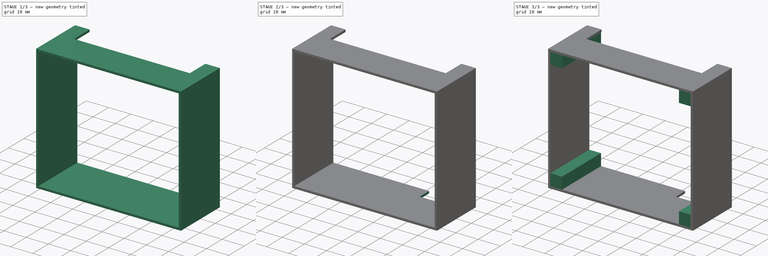
[diagram: build sequence overview — one tinted view per stage of 3, left to right]
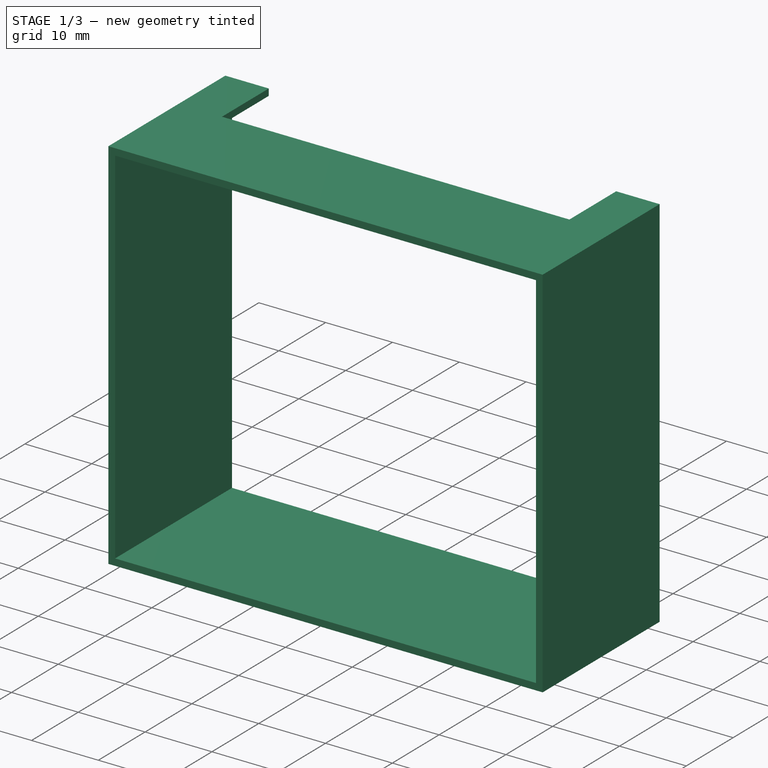
[diagram: stage 1 of 3 — iso view after this stage's code; geometry added in this stage tinted green]
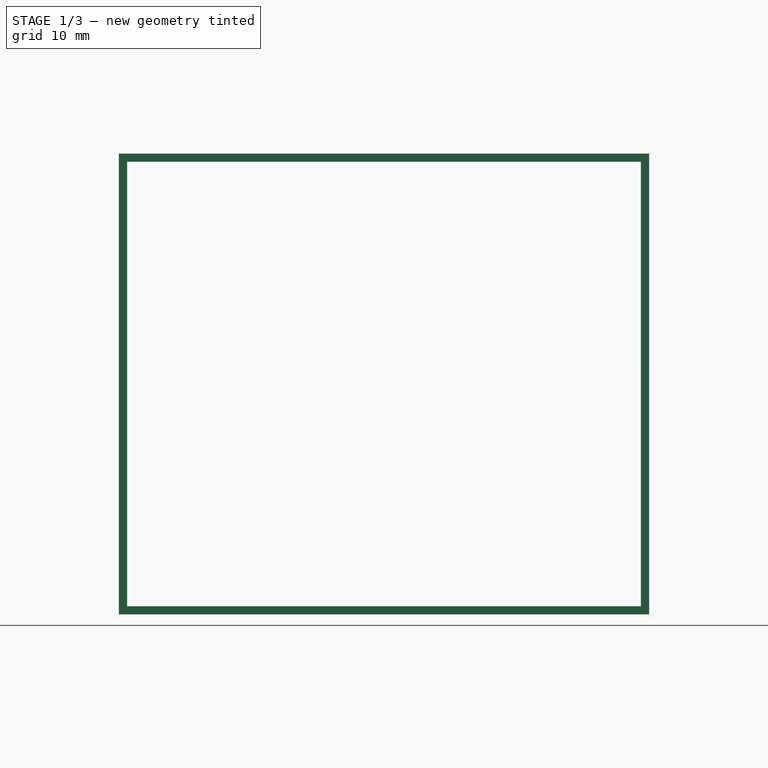
[diagram: stage 1 of 3 — front view after this stage's code; geometry added in this stage tinted green]
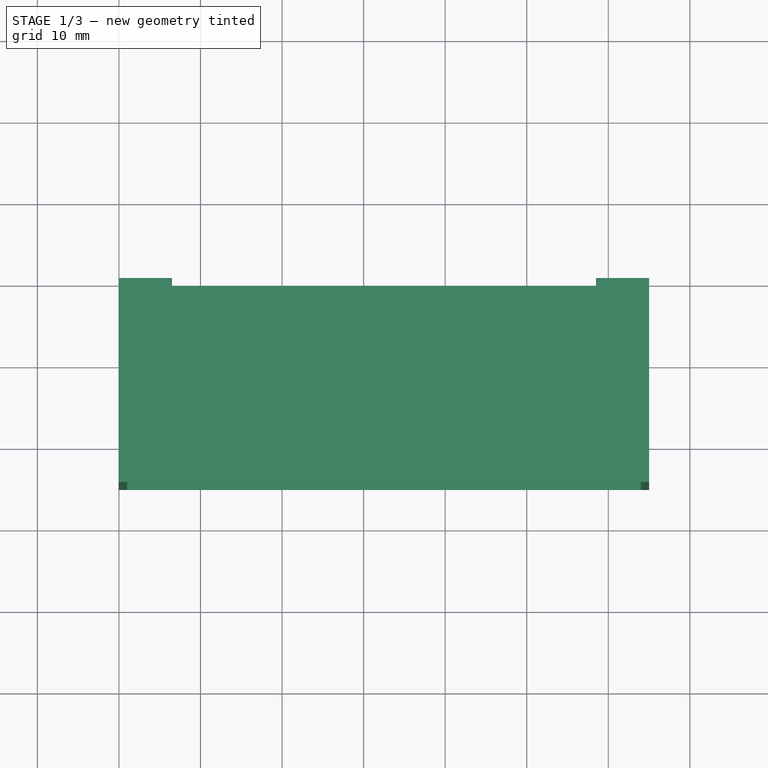
[diagram: stage 1 of 3 — top view after this stage's code; geometry added in this stage tinted green]
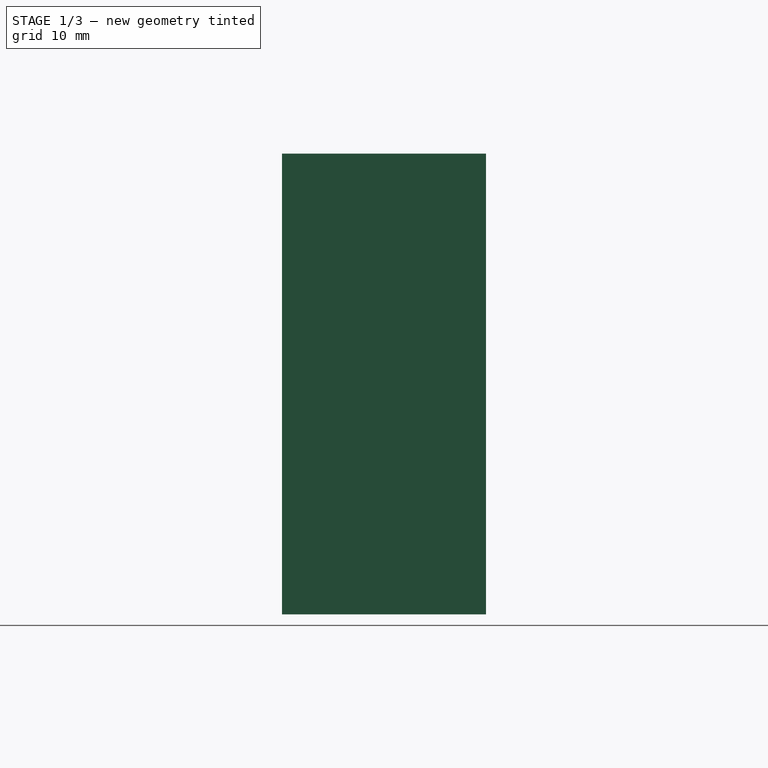
[diagram: stage 1 of 3 — right view after this stage's code; geometry added in this stage tinted green]
FCSTD DOCUMENT  (FreeCAD 0.18.4R)
Label: TouchlessTouchSwitch
License: All rights reserved
LicenseURL: http://en.wikipedia.org/wiki/All_rights_reserved
objects: Sketcher::SketchObject×5, PartDesign::Pocket×3, PartDesign::Pad×2, PartDesign::Body×1
note: 16 computed .brp shape members not serialized (recipe doc carries the construction recipe); baked Part::Feature solids carry a one-line shape summary decoded from their .brp

FEATURE [Sketcher::SketchObject] Sketch
  MapMode = 5
  Placement = pos=(0,0,0) rot=(1,0,0;1.5708rad)
  Support = -> [XZ_Plane]
  sketch-geometry (8):
    g0: LineSegment StartX=0 StartY=0 StartZ=0 EndX=65 EndY=0 EndZ=0
    g1: LineSegment StartX=65 StartY=0 StartZ=0 EndX=65 EndY=-56.5 EndZ=0
    g2: LineSegment StartX=65 StartY=-56.5 StartZ=0 EndX=0 EndY=-56.5 EndZ=0
    g3: LineSegment StartX=0 StartY=-56.5 StartZ=0 EndX=0 EndY=0 EndZ=0
    g4: LineSegment StartX=1 StartY=-1 StartZ=0 EndX=64 EndY=-1 EndZ=0
    g5: LineSegment StartX=64 StartY=-1 StartZ=0 EndX=64 EndY=-55.5 EndZ=0
    g6: LineSegment StartX=64 StartY=-55.5 StartZ=0 EndX=1 EndY=-55.5 EndZ=0
    g7: LineSegment StartX=1 StartY=-55.5 StartZ=0 EndX=1 EndY=-1 EndZ=0
  constraints (23):
    c: Coincident(g0,g1)
    c: Coincident(g1,g2)
    c: Coincident(g2,g3)
    c: Coincident(g3,g0)
    c: Horizontal(g0)
    c: Horizontal(g2)
    c: Vertical(g1)
    c: Vertical(g3)
    c: Coincident(g-1,g0)
    c: DistanceX(g0,g0) = 65
    c: DistanceY(g1,g1) = 56.5
    c: Coincident(g4,g5)
    c: Coincident(g5,g6)
    c: Coincident(g6,g7)
    c: Coincident(g7,g4)
    c: Horizontal(g4)
    c: Horizontal(g6)
    c: Vertical(g5)
    c: Vertical(g7)
    c: DistanceY(g4,g0) = 1
    c: DistanceY(g1,g5) = 1
    c: DistanceX(g2,g6) = 1
    c: DistanceX(g5,g1) = 1
FEATURE [PartDesign::Pad] Pad
  Length = 25
  Length2 = 100
  Placement = pos=(0,0,0) rot=(1,0,0;1.5708rad)
  Profile = -> Sketch
  Type = 0
FEATURE [Sketcher::SketchObject] Sketch001
  MapMode = 5
  Placement = pos=(0,0,0) rot=(1,0,0;1.5708rad)
  Support = -> [XZ_Plane]
  sketch-geometry (4):
    g0: LineSegment StartX=6.5 StartY=0 StartZ=0 EndX=58.5 EndY=0 EndZ=0
    g1: LineSegment StartX=58.5 StartY=0 StartZ=0 EndX=58.5 EndY=-1 EndZ=0
    g2: LineSegment StartX=58.5 StartY=-1 StartZ=0 EndX=6.5 EndY=-1 EndZ=0
    g3: LineSegment StartX=6.5 StartY=-1 StartZ=0 EndX=6.5 EndY=0 EndZ=0
  constraints (12):
    c: Coincident(g0,g1)
    c: Coincident(g1,g2)
    c: Coincident(g2,g3)
    c: Coincident(g3,g0)
    c: Horizontal(g0)
    c: Horizontal(g2)
    c: Vertical(g1)
    c: Vertical(g3)
    c: DistanceX(g-1,g0) = 6.5
    c: DistanceX(g0,g0) = 52
    c: DistanceY(g-1,g0) = 0
    c: DistanceY(g2,g0) = 1
FEATURE [PartDesign::Pocket] Pocket
  BaseFeature = -> Pad
  Length = 10
  Length2 = 100
  Placement = pos=(0,0,0) rot=(1,0,0;1.5708rad)
  Profile = -> Sketch001
  Reversed = true
  Type = 0
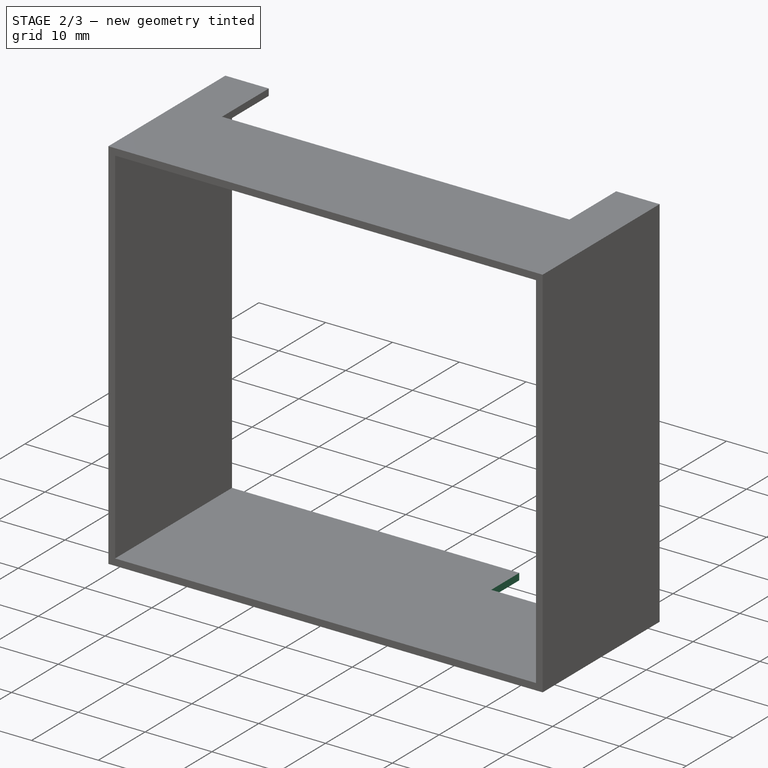
[diagram: stage 2 of 3 — iso view after this stage's code; geometry added in this stage tinted green]
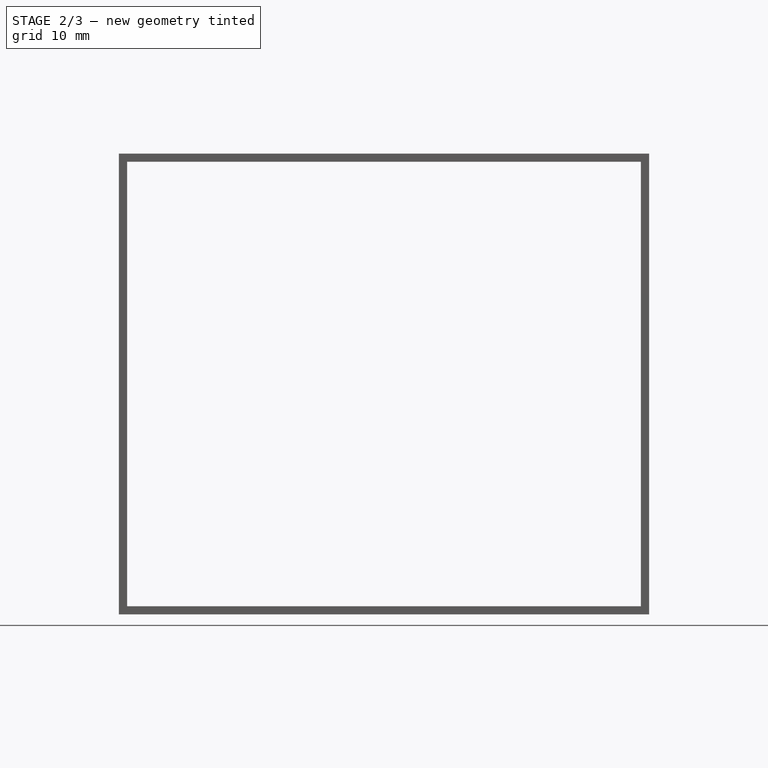
[diagram: stage 2 of 3 — front view after this stage's code; geometry added in this stage tinted green]
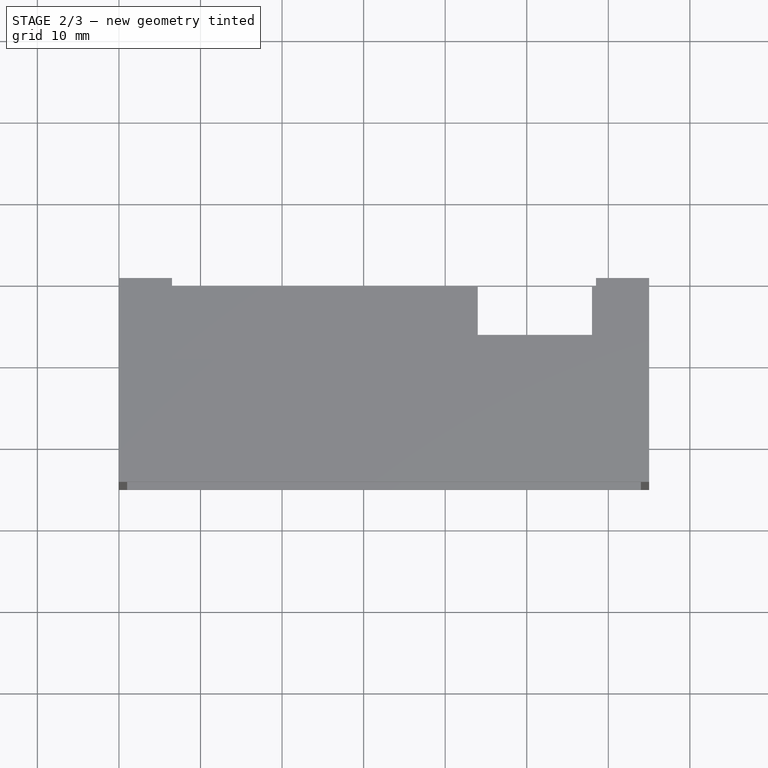
[diagram: stage 2 of 3 — top view after this stage's code; geometry added in this stage tinted green]
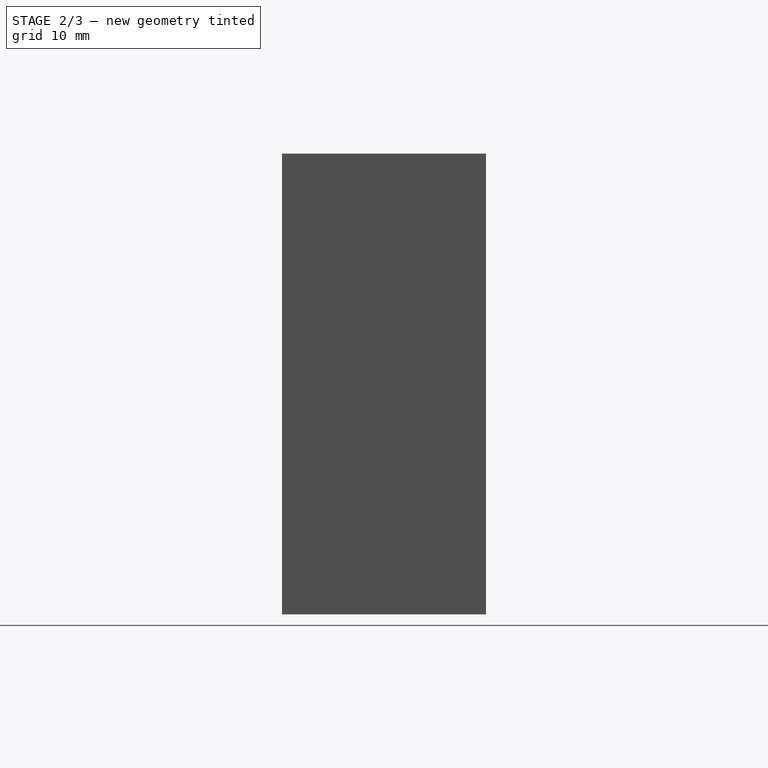
[diagram: stage 2 of 3 — right view after this stage's code; geometry added in this stage tinted green]
FEATURE [Sketcher::SketchObject] Sketch002
  ExternalGeometry = -> [Pocket]
  MapMode = 5
  Placement = pos=(0,0,0) rot=(1,0,0;1.5708rad)
  Support = -> [XZ_Plane]
  sketch-geometry (4):
    g0: LineSegment StartX=44 StartY=-55.5 StartZ=0 EndX=58 EndY=-55.5 EndZ=0
    g1: LineSegment StartX=58 StartY=-55.5 StartZ=0 EndX=58 EndY=-56.5 EndZ=0
    g2: LineSegment StartX=58 StartY=-56.5 StartZ=0 EndX=44 EndY=-56.5 EndZ=0
    g3: LineSegment StartX=44 StartY=-56.5 StartZ=0 EndX=44 EndY=-55.5 EndZ=0
  constraints (12):
    c: Coincident(g0,g1)
    c: Coincident(g1,g2)
    c: Coincident(g2,g3)
    c: Coincident(g3,g0)
    c: Horizontal(g0)
    c: Horizontal(g2)
    c: Vertical(g1)
    c: Vertical(g3)
    c: DistanceX(g0,g0) = 14
    c: DistanceX(g-4,g0) = 44
    c: DistanceY(g-4,g1) = 0
    c: DistanceY(g3,g3) = 1
FEATURE [PartDesign::Pocket] Pocket001
  BaseFeature = -> Pocket
  Length = 6
  Length2 = 100
  Placement = pos=(0,0,0) rot=(1,0,0;1.5708rad)
  Profile = -> Sketch002
  Reversed = true
  Type = 0
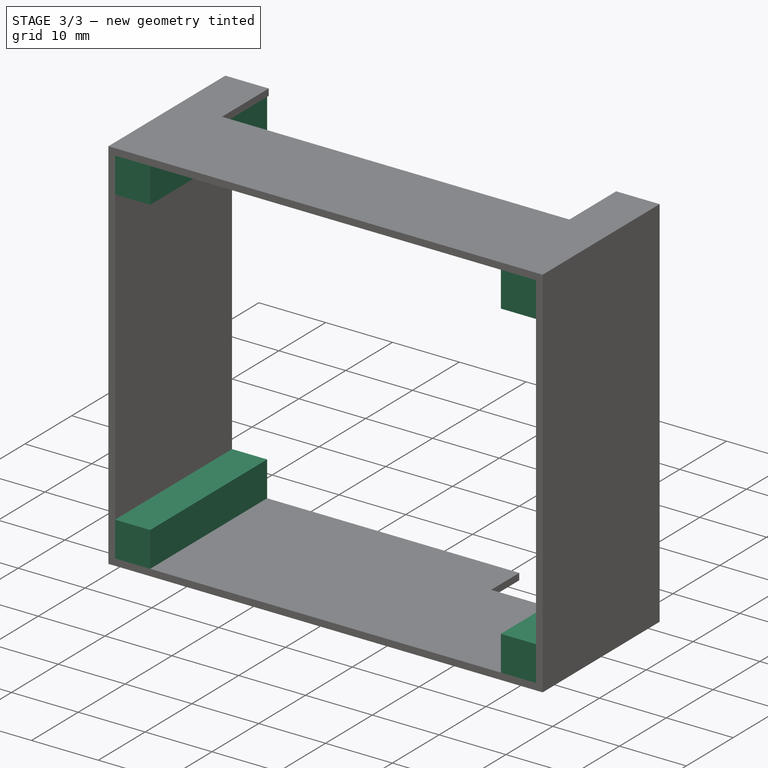
[diagram: stage 3 of 3 — iso view after this stage's code; geometry added in this stage tinted green]
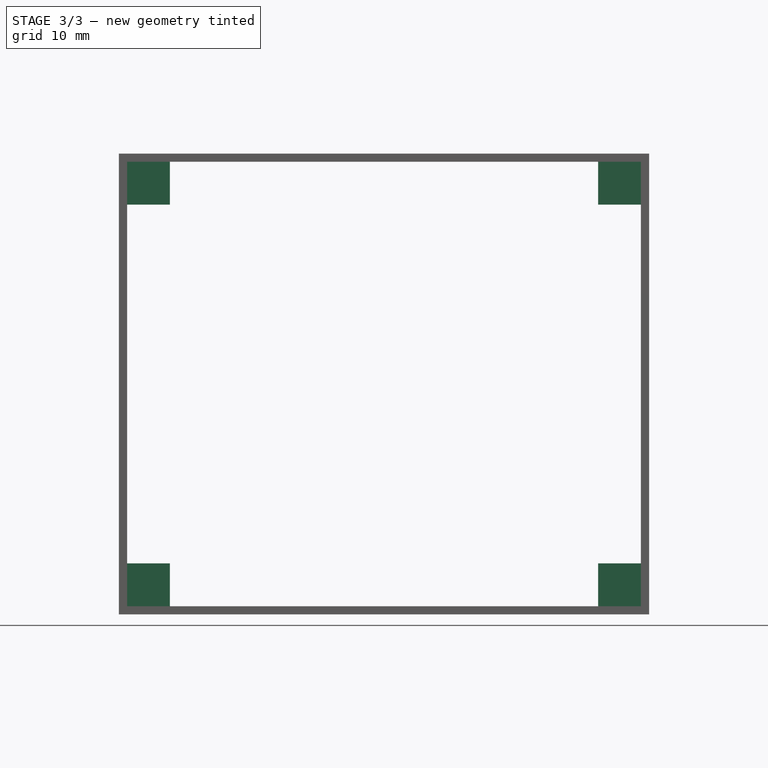
[diagram: stage 3 of 3 — front view after this stage's code; geometry added in this stage tinted green]
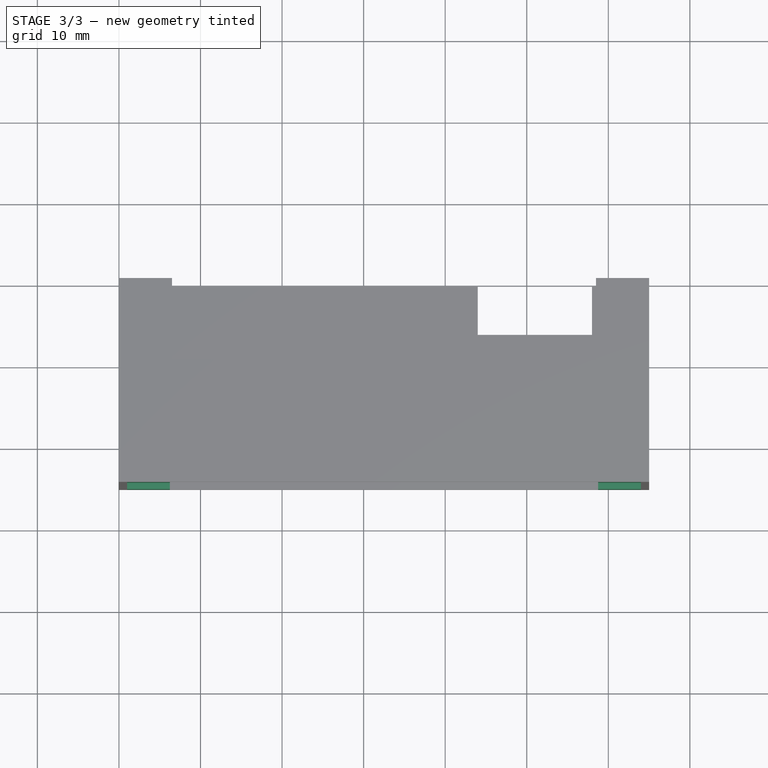
[diagram: stage 3 of 3 — top view after this stage's code; geometry added in this stage tinted green]
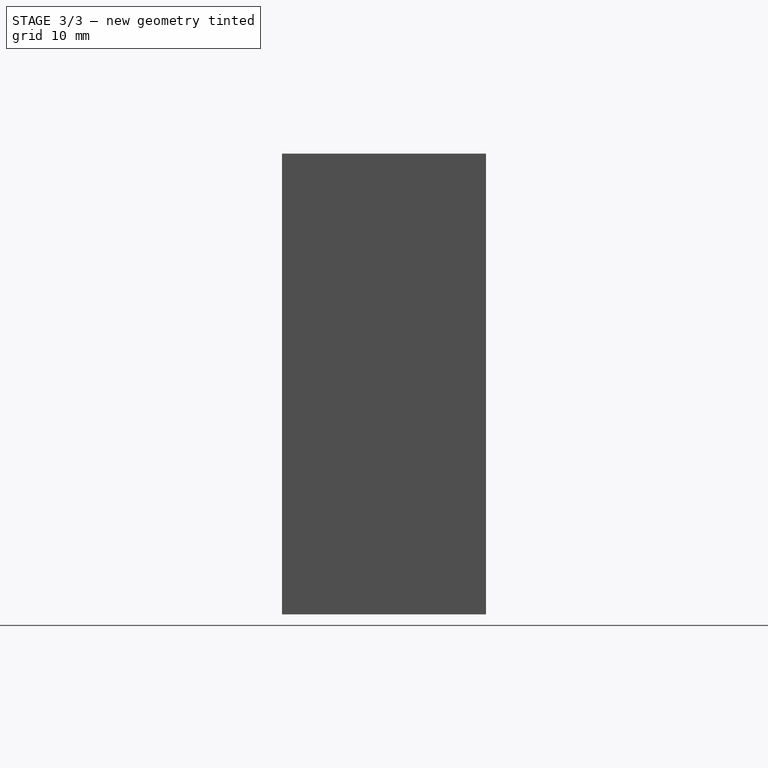
[diagram: stage 3 of 3 — right view after this stage's code; geometry added in this stage tinted green]
FEATURE [Sketcher::SketchObject] Sketch003
  ExternalGeometry = -> [Pocket001]
  MapMode = 5
  Placement = pos=(0,0,0) rot=(1,0,0;1.5708rad)
  Support = -> [XZ_Plane]
  sketch-geometry (16):
    g0: LineSegment StartX=0 StartY=0 StartZ=0 EndX=6.25 EndY=0 EndZ=0
    g1: LineSegment StartX=6.25 StartY=0 StartZ=0 EndX=6.25 EndY=-6.25 EndZ=0
    g2: LineSegment StartX=6.25 StartY=-6.25 StartZ=0 EndX=0 EndY=-6.25 EndZ=0
    g3: LineSegment StartX=0 StartY=-6.25 StartZ=0 EndX=0 EndY=0 EndZ=0
    g4: LineSegment StartX=0 StartY=-56.5 StartZ=0 EndX=6.25 EndY=-56.5 EndZ=0
    g5: LineSegment StartX=6.25 StartY=-56.5 StartZ=0 EndX=6.25 EndY=-50.25 EndZ=0
    g6: LineSegment StartX=6.25 StartY=-50.25 StartZ=0 EndX=0 EndY=-50.25 EndZ=0
    g7: LineSegment StartX=0 StartY=-50.25 StartZ=0 EndX=0 EndY=-56.5 EndZ=0
    g8: LineSegment StartX=58.75 StartY=-50.25 StartZ=0 EndX=65 EndY=-50.25 EndZ=0
    g9: LineSegment StartX=65 StartY=-50.25 StartZ=0 EndX=65 EndY=-56.5 EndZ=0
    g10: LineSegment StartX=65 StartY=-56.5 StartZ=0 EndX=58.75 EndY=-56.5 EndZ=0
    g11: LineSegment StartX=58.75 StartY=-56.5 StartZ=0 EndX=58.75 EndY=-50.25 EndZ=0
    g12: LineSegment StartX=58.75 StartY=2.22e-14 StartZ=0 EndX=65 EndY=2.22e-14 EndZ=0
    g13: LineSegment StartX=65 StartY=2.22e-14 StartZ=0 EndX=65 EndY=-6.25 EndZ=0
    g14: LineSegment StartX=65 StartY=-6.25 StartZ=0 EndX=58.75 EndY=-6.25 EndZ=0
    g15: LineSegment StartX=58.75 StartY=-6.25 StartZ=0 EndX=58.75 EndY=2.22e-14 EndZ=0
  constraints (44):
    c: Coincident(g0,g1)
    c: Coincident(g1,g2)
    c: Coincident(g2,g3)
    c: Coincident(g3,g0)
    c: Horizontal(g0)
    c: Horizontal(g2)
    c: Vertical(g1)
    c: Vertical(g3)
    c: DistanceY(g3,g3) = 6.25
    c: Equal(g3,g0)
    c: Coincident(g0,g-1)
    c: Coincident(g4,g5)
    c: Coincident(g5,g6)
    c: Coincident(g6,g7)
    c: Coincident(g7,g4)
    c: Horizontal(g4)
    c: Horizontal(g6)
    c: Vertical(g5)
    c: Vertical(g7)
    c: Coincident(g-5,g4)
    c: DistanceX(g6,g6) = 6.25
    c: DistanceY(g5,g5) = 6.25
    c: Coincident(g8,g9)
    c: Coincident(g9,g10)
    c: Coincident(g10,g11)
    c: Coincident(g11,g8)
    c: Horizontal(g8)
    c: Horizontal(g10)
    c: Vertical(g9)
    c: Vertical(g11)
    c: Coincident(g9,g-4)
    c: DistanceX(g8,g8) = 6.25
    c: DistanceY(g11,g11) = 6.25
    c: Coincident(g12,g13)
    c: Coincident(g13,g14)
    c: Coincident(g14,g15)
    c: Coincident(g15,g12)
    c: Horizontal(g12)
    c: Horizontal(g14)
    c: Vertical(g13)
    c: Vertical(g15)
    c: Coincident(g12,g-3)
    c: DistanceY(g15,g15) = 6.25
    c: DistanceX(g14,g14) = 6.25
FEATURE [PartDesign::Pad] Pad001
  BaseFeature = -> Pocket001
  Length = 25
  Length2 = 100
  Placement = pos=(0,0,0) rot=(1,0,0;1.5708rad)
  Profile = -> Sketch003
  Type = 0
FEATURE [Sketcher::SketchObject] Sketch004
  ExternalGeometry = -> [Pad001]
  MapMode = 5
  Placement = pos=(0,0,0) rot=(1,0,0;1.5708rad)
  Support = -> [XZ_Plane]
  sketch-geometry (4):
    g0: Circle CenterX=4.5 CenterY=-52 CenterZ=0 NormalX=0 NormalY=0 NormalZ=1 AngleXU=0 Radius=1
    g1: Circle CenterX=4.5 CenterY=-4.5 CenterZ=0 NormalX=0 NormalY=0 NormalZ=1 AngleXU=0 Radius=1
    g2: Circle CenterX=60.5 CenterY=-4.5 CenterZ=0 NormalX=0 NormalY=0 NormalZ=1 AngleXU=0 Radius=1
    g3: Circle CenterX=60.5 CenterY=-52 CenterZ=0 NormalX=0 NormalY=0 NormalZ=1 AngleXU=0 Radius=1
  constraints (8):
    c: DistanceX(g-14,g0) = 4.5
    c: DistanceY(g-14,g0) = 4.5
    c: DistanceX(g2,g-15) = 4.5
    c: DistanceY(g2,g-15) = 4.5
    c: DistanceX(g-1,g1) = 4.5
    c: DistanceY(g1,g-1) = 4.5
    c: DistanceY(g-12,g3) = 4.5
    c: DistanceX(g3,g-12) = 4.5
FEATURE [PartDesign::Pocket] Pocket002
  BaseFeature = -> Pad001
  Length = 10
  Length2 = 100
  Placement = pos=(0,0,0) rot=(1,0,0;1.5708rad)
  Profile = -> Sketch004
  Reversed = true
  Type = 0
FEATURE [PartDesign::Body] Body
  Group = -> [Sketch,Pad,Sketch001,Pocket,Sketch002,Pocket001,Sketch003,Pad001,Sketch004,Pocket002]
  Origin = -> Origin
  Tip = -> Pocket002
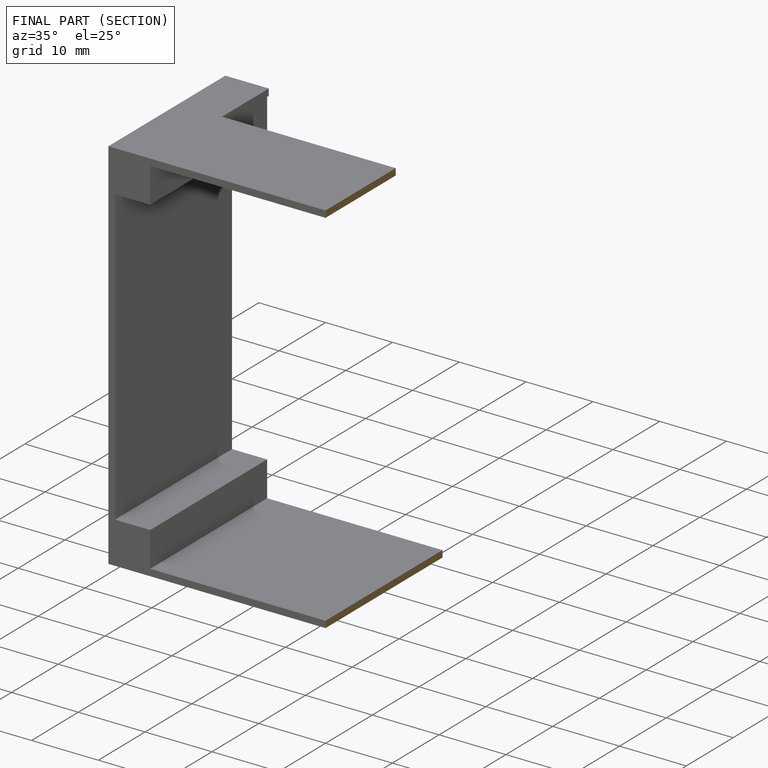
[diagram: finished part — half-section view (interior)]
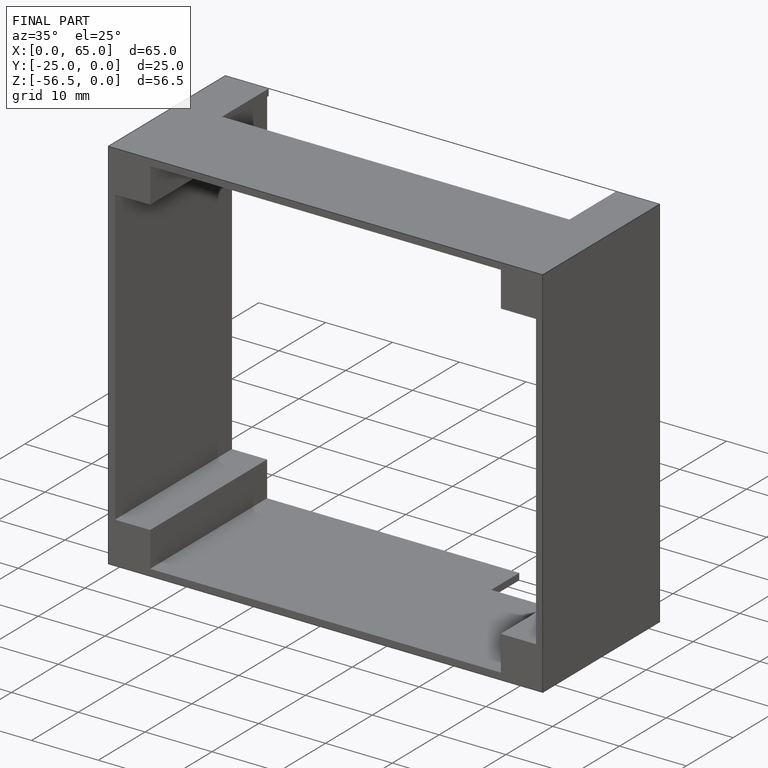
[diagram: finished part — iso view with bounding-box wireframe]
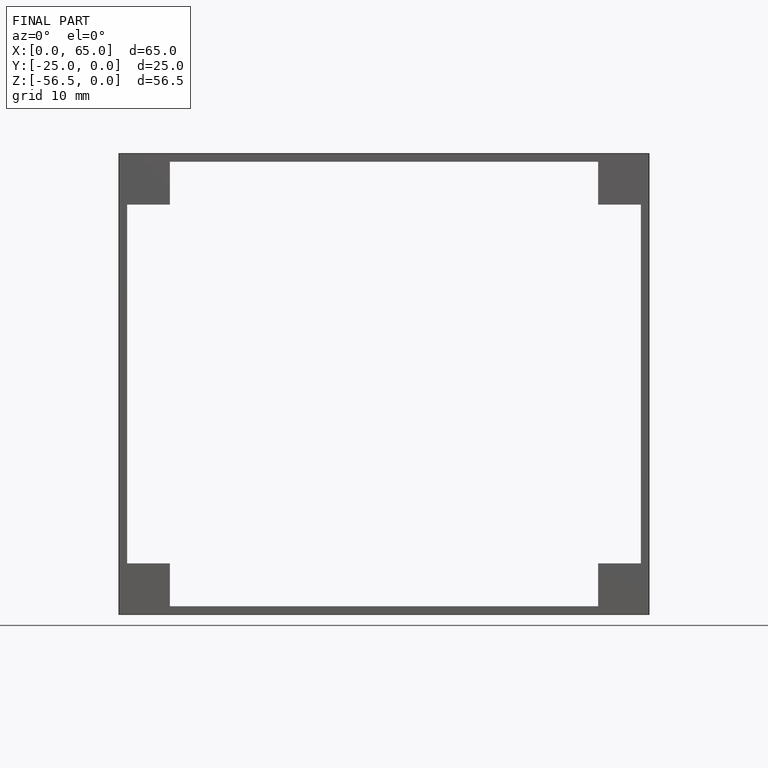
[diagram: finished part — front view with bounding-box wireframe]
